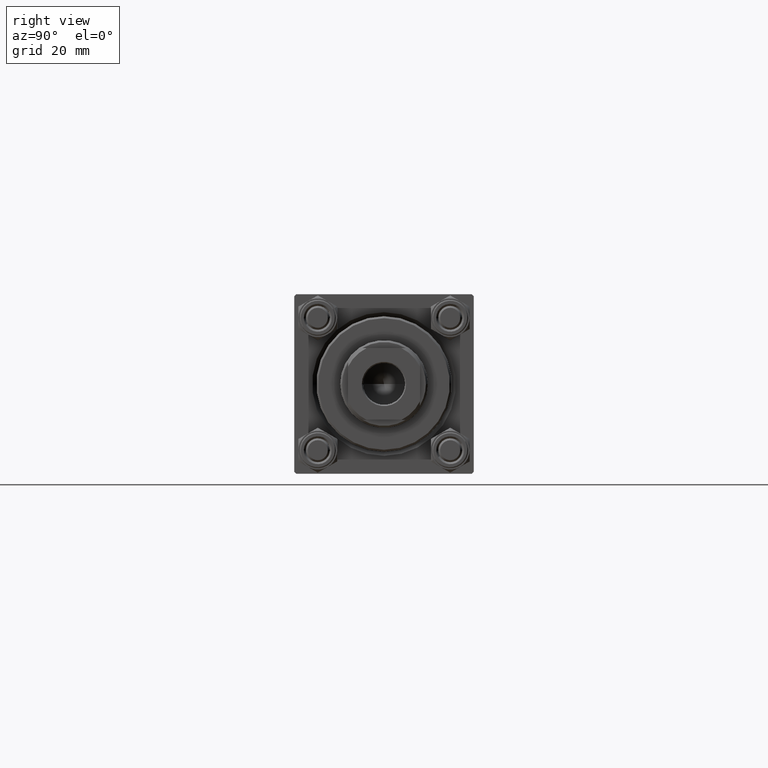
[diagram: clean part render]
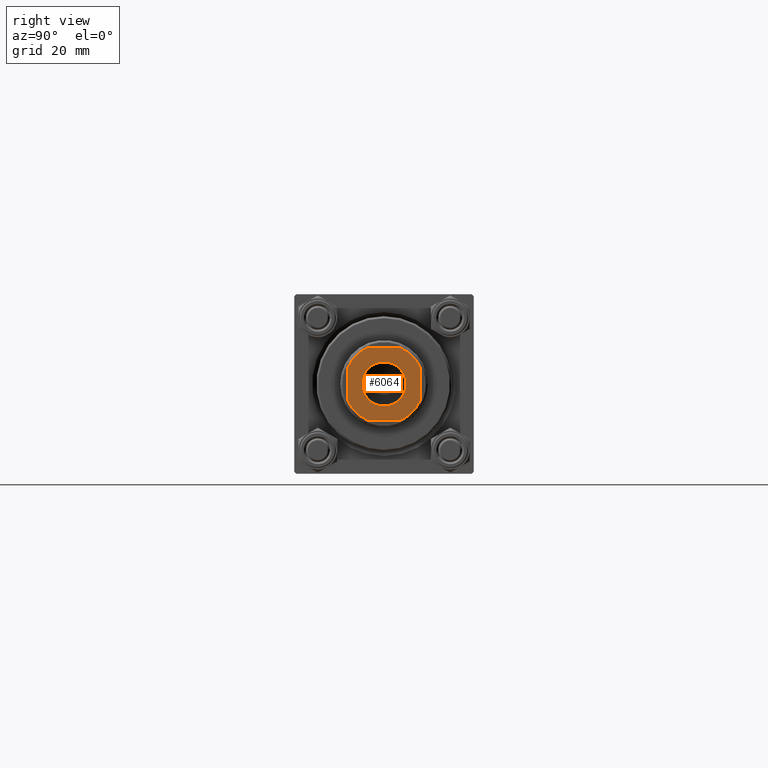
[diagram: same view with one face highlighted and labeled with its STEP entity id]
A machine part, right view. The second image highlights one B-rep face of the part: STEP entity #6064.
In plain terms, the highlighted planar face has unit normal (1, 0, -0).
Its self-contained STEP definition (entity closure, byte-faithful):
#85 = EDGE_CURVE ( 'NONE', #48138, #17887, #43214, .T. ) ;
#1633 = EDGE_CURVE ( 'NONE', #47757, #16834, #16621, .T. ) ;
#3016 = CIRCLE ( 'NONE', #31222, 5.550000000000013145 ) ;
#3273 = DIRECTION ( 'NONE',  ( 1.000000000000000000, 0.000000000000000000, 0.000000000000000000 ) ) ;
#3745 = CARTESIAN_POINT ( 'NONE',  ( 0.000000000000000000, 0.000000000000000000, 123.0000000000000000 ) ) ;
#4416 = DIRECTION ( 'NONE',  ( 1.000000000000000000, 0.000000000000000000, 0.000000000000000000 ) ) ;
#4481 = DIRECTION ( 'NONE',  ( 1.000000000000000000, 0.000000000000000000, 0.000000000000000000 ) ) ;
#4851 = AXIS2_PLACEMENT_3D ( 'NONE', #12444, #15740, #31395 ) ;
#5300 = CARTESIAN_POINT ( 'NONE',  ( -9.000000000000003553, 4.358898943540662430, 123.0000000000000000 ) ) ;
#5312 = VERTEX_POINT ( 'NONE', #18569 ) ;
#5645 = CIRCLE ( 'NONE', #4851, 9.999999999999966249 ) ;
#6064 = ADVANCED_FACE ( 'NONE', ( #34001, #15316 ), #6762, .T. ) ;
#6201 = CARTESIAN_POINT ( 'NONE',  ( 8.999999999999996447, 8.999999999999998224, 123.0000000000000000 ) ) ;
#6409 = VERTEX_POINT ( 'NONE', #46248 ) ;
#6762 = PLANE ( 'NONE',  #15939 ) ;
#6964 = EDGE_CURVE ( 'NONE', #48748, #47757, #39626, .T. ) ;
#7511 = CARTESIAN_POINT ( 'NONE',  ( 0.000000000000000000, 0.000000000000000000, 123.0000000000000000 ) ) ;
#8003 = EDGE_CURVE ( 'NONE', #35961, #48138, #18428, .T. ) ;
#9334 = ORIENTED_EDGE ( 'NONE', *, *, #6964, .T. ) ;
#9566 = DIRECTION ( 'NONE',  ( 1.000000000000000000, 0.000000000000000000, 0.000000000000000000 ) ) ;
#11113 = VECTOR ( 'NONE', #12529, 1000.000000000000000 ) ;
#11462 = CARTESIAN_POINT ( 'NONE',  ( -4.358898943540671311, 8.999999999999998224, 123.0000000000000000 ) ) ;
#12444 = CARTESIAN_POINT ( 'NONE',  ( 0.000000000000000000, 0.000000000000000000, 123.0000000000000000 ) ) ;
#12529 = DIRECTION ( 'NONE',  ( 9.637352644315595243E-17, -1.000000000000000000, 0.000000000000000000 ) ) ;
#14608 = CARTESIAN_POINT ( 'NONE',  ( 0.000000000000000000, 0.000000000000000000, 123.0000000000000000 ) ) ;
#14965 = VECTOR ( 'NONE', #4416, 1000.000000000000000 ) ;
#15316 = FACE_OUTER_BOUND ( 'NONE', #19091, .T. ) ;
#15740 = DIRECTION ( 'NONE',  ( -0.000000000000000000, 0.000000000000000000, 1.000000000000000000 ) ) ;
#15939 = AXIS2_PLACEMENT_3D ( 'NONE', #7511, #26172, #49328 ) ;
#16094 = ORIENTED_EDGE ( 'NONE', *, *, #85, .T. ) ;
#16385 = DIRECTION ( 'NONE',  ( 0.000000000000000000, -0.000000000000000000, -1.000000000000000000 ) ) ;
#16621 = CIRCLE ( 'NONE', #31124, 9.999999999999996447 ) ;
#16632 = DIRECTION ( 'NONE',  ( 1.000000000000000000, 0.000000000000000000, 0.000000000000000000 ) ) ;
#16829 = ORIENTED_EDGE ( 'NONE', *, *, #48941, .T. ) ;
#16834 = VERTEX_POINT ( 'NONE', #5300 ) ;
#17343 = CIRCLE ( 'NONE', #49538, 9.999999999999998224 ) ;
#17801 = DIRECTION ( 'NONE',  ( -1.927470528863119049E-16, 1.000000000000000000, -0.000000000000000000 ) ) ;
#17887 = VERTEX_POINT ( 'NONE', #39596 ) ;
#18428 = CIRCLE ( 'NONE', #48193, 9.999999999999998224 ) ;
#18569 = CARTESIAN_POINT ( 'NONE',  ( 8.999999999999998224, 4.358898943540600257, 123.0000000000000000 ) ) ;
#18671 = CARTESIAN_POINT ( 'NONE',  ( -5.550000000000013145, 6.796789735267826558E-16, 123.0000000000000000 ) ) ;
#18819 = EDGE_CURVE ( 'NONE', #21742, #6409, #27511, .T. ) ;
#19091 = EDGE_LOOP ( 'NONE', ( #26625, #16829, #9334, #25406, #44019, #29954, #16094, #26126 ) ) ;
#21108 = LINE ( 'NONE', #25154, #11113 ) ;
#21742 = VERTEX_POINT ( 'NONE', #18671 ) ;
#21955 = EDGE_CURVE ( 'NONE', #36393, #5312, #40742, .T. ) ;
#22904 = DIRECTION ( 'NONE',  ( 1.000000000000000000, 0.000000000000000000, 0.000000000000000000 ) ) ;
#23655 = DIRECTION ( 'NONE',  ( -0.000000000000000000, 0.000000000000000000, 1.000000000000000000 ) ) ;
#24709 = CARTESIAN_POINT ( 'NONE',  ( 0.000000000000000000, 0.000000000000000000, 123.0000000000000000 ) ) ;
#25016 = CARTESIAN_POINT ( 'NONE',  ( -9.000000000000003553, 8.999999999999998224, 123.0000000000000000 ) ) ;
#25154 = CARTESIAN_POINT ( 'NONE',  ( -9.000000000000003553, 8.999999999999998224, 123.0000000000000000 ) ) ;
#25406 = ORIENTED_EDGE ( 'NONE', *, *, #1633, .T. ) ;
#26126 = ORIENTED_EDGE ( 'NONE', *, *, #28604, .T. ) ;
#26172 = DIRECTION ( 'NONE',  ( -0.000000000000000000, 0.000000000000000000, 1.000000000000000000 ) ) ;
#26625 = ORIENTED_EDGE ( 'NONE', *, *, #21955, .T. ) ;
#27511 = CIRCLE ( 'NONE', #31545, 5.550000000000013145 ) ;
#27617 = CARTESIAN_POINT ( 'NONE',  ( -9.000000000000001776, -9.000000000000001776, 123.0000000000000000 ) ) ;
#28604 = EDGE_CURVE ( 'NONE', #17887, #36393, #17343, .T. ) ;
#28739 = DIRECTION ( 'NONE',  ( -0.000000000000000000, 0.000000000000000000, 1.000000000000000000 ) ) ;
#29704 = VECTOR ( 'NONE', #35853, 1000.000000000000000 ) ;
#29954 = ORIENTED_EDGE ( 'NONE', *, *, #8003, .T. ) ;
#30589 = CARTESIAN_POINT ( 'NONE',  ( -4.358898943540667759, -9.000000000000001776, 123.0000000000000000 ) ) ;
#31124 = AXIS2_PLACEMENT_3D ( 'NONE', #35243, #23655, #4481 ) ;
#31222 = AXIS2_PLACEMENT_3D ( 'NONE', #35567, #16385, #16632 ) ;
#31395 = DIRECTION ( 'NONE',  ( 1.000000000000000000, 0.000000000000000000, 0.000000000000000000 ) ) ;
#31545 = AXIS2_PLACEMENT_3D ( 'NONE', #14608, #48630, #3273 ) ;
#34001 = FACE_BOUND ( 'NONE', #44580, .T. ) ;
#35243 = CARTESIAN_POINT ( 'NONE',  ( 0.000000000000000000, 0.000000000000000000, 123.0000000000000000 ) ) ;
#35567 = CARTESIAN_POINT ( 'NONE',  ( 0.000000000000000000, 0.000000000000000000, 123.0000000000000000 ) ) ;
#35596 = ORIENTED_EDGE ( 'NONE', *, *, #38346, .T. ) ;
#35853 = DIRECTION ( 'NONE',  ( -1.000000000000000000, -0.000000000000000000, -0.000000000000000000 ) ) ;
#35961 = VERTEX_POINT ( 'NONE', #39936 ) ;
#36393 = VERTEX_POINT ( 'NONE', #37769 ) ;
#36491 = VECTOR ( 'NONE', #17801, 1000.000000000000000 ) ;
#37769 = CARTESIAN_POINT ( 'NONE',  ( 8.999999999999998224, -4.358898943540672200, 123.0000000000000000 ) ) ;
#38346 = EDGE_CURVE ( 'NONE', #6409, #21742, #3016, .T. ) ;
#39583 = EDGE_CURVE ( 'NONE', #16834, #35961, #21108, .T. ) ;
#39596 = CARTESIAN_POINT ( 'NONE',  ( 4.358898943540667759, -9.000000000000001776, 123.0000000000000000 ) ) ;
#39626 = LINE ( 'NONE', #25016, #29704 ) ;
#39936 = CARTESIAN_POINT ( 'NONE',  ( -9.000000000000003553, -4.358898943540665094, 123.0000000000000000 ) ) ;
#40742 = LINE ( 'NONE', #6201, #36491 ) ;
#43214 = LINE ( 'NONE', #27617, #14965 ) ;
#44019 = ORIENTED_EDGE ( 'NONE', *, *, #39583, .T. ) ;
#44054 = ORIENTED_EDGE ( 'NONE', *, *, #18819, .T. ) ;
#44580 = EDGE_LOOP ( 'NONE', ( #35596, #44054 ) ) ;
#46248 = CARTESIAN_POINT ( 'NONE',  ( 5.550000000000013145, 0.000000000000000000, 123.0000000000000000 ) ) ;
#47757 = VERTEX_POINT ( 'NONE', #11462 ) ;
#48138 = VERTEX_POINT ( 'NONE', #30589 ) ;
#48193 = AXIS2_PLACEMENT_3D ( 'NONE', #24709, #28739, #9566 ) ;
#48521 = CARTESIAN_POINT ( 'NONE',  ( 4.358898943540597593, 8.999999999999998224, 123.0000000000000000 ) ) ;
#48630 = DIRECTION ( 'NONE',  ( 0.000000000000000000, -0.000000000000000000, -1.000000000000000000 ) ) ;
#48748 = VERTEX_POINT ( 'NONE', #48521 ) ;
#48941 = EDGE_CURVE ( 'NONE', #5312, #48748, #5645, .T. ) ;
#49328 = DIRECTION ( 'NONE',  ( 1.000000000000000000, 0.000000000000000000, 0.000000000000000000 ) ) ;
#49538 = AXIS2_PLACEMENT_3D ( 'NONE', #3745, #49592, #22904 ) ;
#49592 = DIRECTION ( 'NONE',  ( -0.000000000000000000, 0.000000000000000000, 1.000000000000000000 ) ) ;